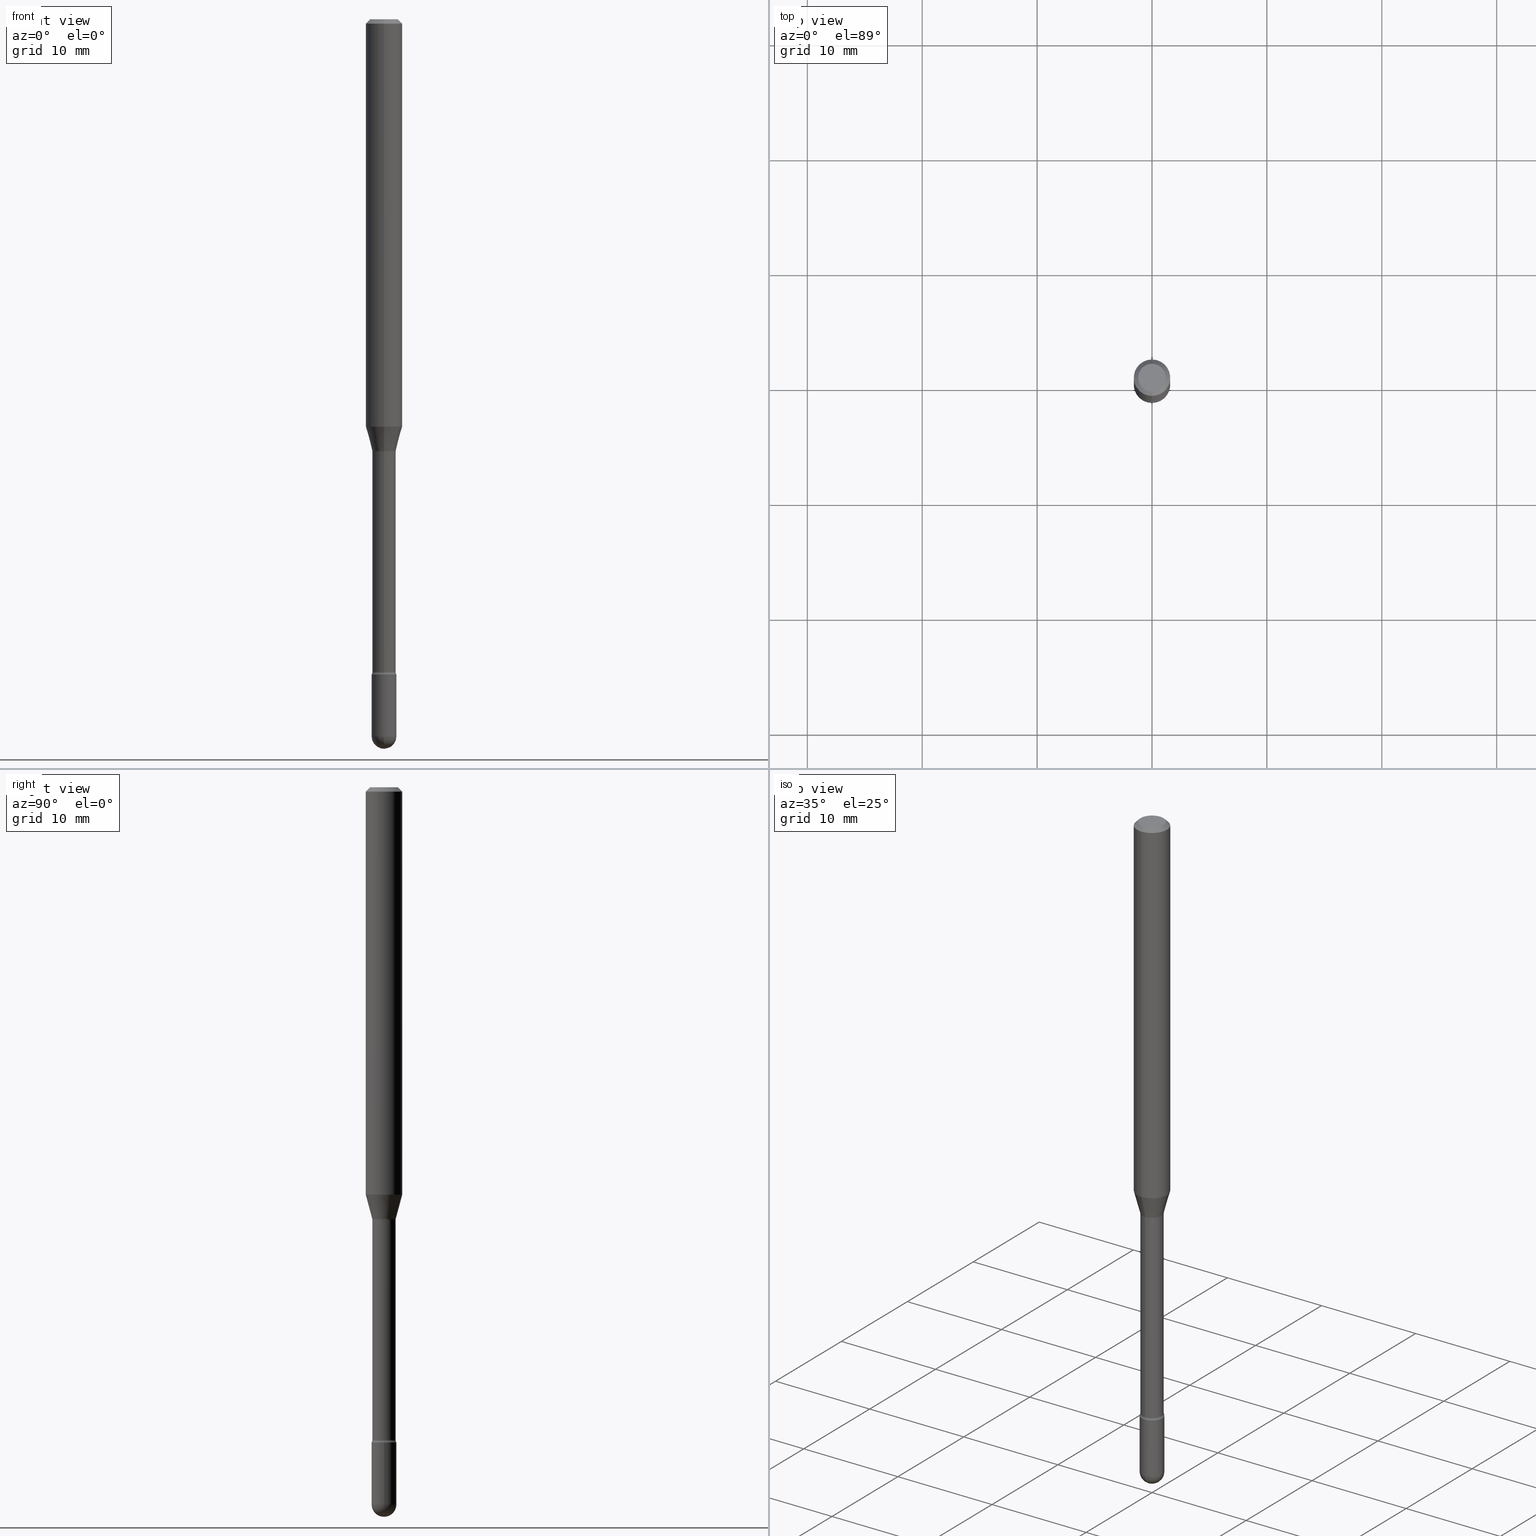
[diagram: canonical four-view strip — front | top / right | iso, engineering-drawing reading convention]
A machine part, canonical four-view strip (front | top / right | iso — engineering-drawing reading convention). The complete STEP part file that produces these views, byte-faithful:
ISO-10303-21;
HEADER;
FILE_DESCRIPTION (( 'STEP AP203' ),
    '1' );
FILE_NAME ('03743.STEP',
    '2024-04-09T20:19:02',
    ( '' ),
    ( '' ),
    'SwSTEP 2.0',
    'SolidWorks 2023',
    '' );
FILE_SCHEMA (( 'CONFIG_CONTROL_DESIGN' ));
ENDSEC;

DATA;
#1 = COORDINATED_UNIVERSAL_TIME_OFFSET ( 5, 0, .BEHIND. ) ;
#2 = ORIENTED_EDGE ( 'NONE', *, *, #489, .F. ) ;
#3 = LINE ( 'NONE', #134, #146 ) ;
#4 = APPROVAL_DATE_TIME ( #224, #300 ) ;
#5 = EDGE_LOOP ( 'NONE', ( #57, #23, #544, #275 ) ) ;
#6 = APPROVAL_DATE_TIME ( #393, #471 ) ;
#7 = CIRCLE ( 'NONE', #196, 0.06250000000000000000 ) ;
#8 = LOCAL_TIME ( 16, 19, 2.000000000000000000, #1 ) ;
#9 = ADVANCED_BREP_SHAPE_REPRESENTATION ( '03743', ( #357, #176, #296 ), #543 ) ;
#10 = ORIENTED_EDGE ( 'NONE', *, *, #458, .T. ) ;
#11 = CARTESIAN_POINT ( 'NONE',  ( 3.624031119525064905E-29, -5.174419056813353329E-15, -1.481974787463811172 ) ) ;
#12 = ORIENTED_EDGE ( 'NONE', *, *, #107, .F. ) ;
#13 = CARTESIAN_POINT ( 'NONE',  ( 5.469478734471066038E-29, -7.809363126603451872E-15, -2.236633549139569688 ) ) ;
#14 = EDGE_CURVE ( 'NONE', #259, #386, #277, .T. ) ;
#15 = VERTEX_POINT ( 'NONE', #63 ) ;
#16 = PRODUCT_DEFINITION_SHAPE ( 'NONE', 'NONE',  #545 ) ;
#17 = TOROIDAL_SURFACE ( 'NONE', #353, 0.05494999999999999885, 0.01500000000000001506 ) ;
#18 = EDGE_LOOP ( 'NONE', ( #265, #413, #350, #12 ) ) ;
#19 = ADVANCED_FACE ( 'NONE', ( #331 ), #460, .T. ) ;
#20 = CIRCLE ( 'NONE', #564, 0.01500000000000001159 ) ;
#21 = CARTESIAN_POINT ( 'NONE',  ( 3.668110095577703732E-31, -5.237355352382881044E-17, -0.01500000000000008271 ) ) ;
#22 = DIRECTION ( 'NONE',  ( -2.445406730385122357E-29, 3.491570234921901204E-15, 1.000000000000000000 ) ) ;
#23 = ORIENTED_EDGE ( 'NONE', *, *, #401, .F. ) ;
#24 = EDGE_LOOP ( 'NONE', ( #440, #370, #565, #529 ) ) ;
#25 = AXIS2_PLACEMENT_3D ( 'NONE', #366, #546, #498 ) ;
#26 = AXIS2_PLACEMENT_3D ( 'NONE', #297, #29, #474 ) ;
#27 = PRODUCT_RELATED_PRODUCT_CATEGORY ( 'detail', '', ( #493 ) ) ;
#28 = CC_DESIGN_APPROVAL ( #203, ( #545 ) ) ;
#29 = DIRECTION ( 'NONE',  ( -2.445406730385122357E-29, 3.491570234921901204E-15, 1.000000000000000000 ) ) ;
#30 = DIRECTION ( 'NONE',  ( 6.982962677686265922E-15, 1.000000000000000000, -6.427877632151215276E-15 ) ) ;
#31 = DIRECTION ( 'NONE',  ( 1.000000000000000000, -6.982962677686265922E-15, 4.876176775795935793E-29 ) ) ;
#32 = DIRECTION ( 'NONE',  ( -6.982962677686265922E-15, -1.000000000000000000, 4.370956789862821150E-15 ) ) ;
#33 = EDGE_CURVE ( 'NONE', #322, #216, #414, .T. ) ;
#34 = DIRECTION ( 'NONE',  ( -6.982962677686266711E-15, -1.000000000000000000, 3.491570234921901599E-15 ) ) ;
#35 = VECTOR ( 'NONE', #424, 39.37007874015748854 ) ;
#36 = CARTESIAN_POINT ( 'NONE',  ( 3.614537352002381406E-29, -5.160863783701689683E-15, -1.478092501787273250 ) ) ;
#37 = AXIS2_PLACEMENT_3D ( 'NONE', #465, #206, #41 ) ;
#38 = CARTESIAN_POINT ( 'NONE',  ( -2.789693589735665748E-16, -0.03995000000000004103, 6.175616297763761985E-16 ) ) ;
#39 = DIRECTION ( 'NONE',  ( -6.982962677686265922E-15, -1.000000000000000000, 4.370956789862821150E-15 ) ) ;
#40 = CARTESIAN_POINT ( 'NONE',  ( -4.364351673553572060E-16, -0.06250000000000484335, -1.395842254289321849 ) ) ;
#41 = DIRECTION ( 'NONE',  ( 1.000000000000000000, -6.982962677686266711E-15, 4.876176775795935793E-29 ) ) ;
#42 = ORIENTED_EDGE ( 'NONE', *, *, #14, .F. ) ;
#43 = CARTESIAN_POINT ( 'NONE',  ( 3.316907271900976096E-16, 0.04749999999999999362, 3.181570853293051375E-17 ) ) ;
#44 = APPLICATION_PROTOCOL_DEFINITION ( 'international standard', 'config_control_design', 1994, #317 ) ;
#45 = AXIS2_PLACEMENT_3D ( 'NONE', #464, #205, #376 ) ;
#46 = ORIENTED_EDGE ( 'NONE', *, *, #408, .T. ) ;
#47 = DIRECTION ( 'NONE',  ( -6.982962677686265133E-15, -1.000000000000000000, 6.838167693777879394E-15 ) ) ;
#48 = DATE_TIME_ROLE ( 'classification_date' ) ;
#49 = EDGE_CURVE ( 'NONE', #68, #313, #246, .T. ) ;
#50 = VERTEX_POINT ( 'NONE', #150 ) ;
#51 = FACE_OUTER_BOUND ( 'NONE', #330, .T. ) ;
#52 = ORIENTED_EDGE ( 'NONE', *, *, #255, .F. ) ;
#53 = CARTESIAN_POINT ( 'NONE',  ( -2.789693589735301393E-16, -0.03995000000000518275, -1.481974787463810728 ) ) ;
#54 = CALENDAR_DATE ( 2024, 9, 4 ) ;
#55 = AXIS2_PLACEMENT_3D ( 'NONE', #417, #374, #213 ) ;
#56 = CIRCLE ( 'NONE', #378, 0.04046111260566399165 ) ;
#57 = ORIENTED_EDGE ( 'NONE', *, *, #254, .F. ) ;
#58 = DIRECTION ( 'NONE',  ( 1.000000000000000000, -6.982962677686273810E-15, 0.000000000000000000 ) ) ;
#59 = DIRECTION ( 'NONE',  ( -6.982962677686266711E-15, -1.000000000000000000, 6.838167693777865983E-15 ) ) ;
#60 = DIRECTION ( 'NONE',  ( -6.982962677686266711E-15, -1.000000000000000000, 3.491570234921901599E-15 ) ) ;
#61 = ORIENTED_EDGE ( 'NONE', *, *, #520, .F. ) ;
#62 = CIRCLE ( 'NONE', #157, 0.04749999999999999362 ) ;
#63 = CARTESIAN_POINT ( 'NONE',  ( 4.440892098500969316E-16, 0.06249999999999993755, -0.01500000000000030129 ) ) ;
#64 = CIRCLE ( 'NONE', #432, 0.06250000000000000000 ) ;
#65 = DIRECTION ( 'NONE',  ( -6.982962677686266711E-15, -1.000000000000000000, 0.000000000000000000 ) ) ;
#66 = CC_DESIGN_PERSON_AND_ORGANIZATION_ASSIGNMENT ( #430, #442, ( #493 ) ) ;
#67 = EDGE_CURVE ( 'NONE', #313, #534, #135, .T. ) ;
#68 = VERTEX_POINT ( 'NONE', #553 ) ;
#69 = DIRECTION ( 'NONE',  ( 1.000000000000000000, -6.982962677686265922E-15, 4.883557194083112340E-29 ) ) ;
#70 = AXIS2_PLACEMENT_3D ( 'NONE', #263, #566, #223 ) ;
#71 = FACE_OUTER_BOUND ( 'NONE', #402, .T. ) ;
#72 = CC_DESIGN_APPROVAL ( #471, ( #304 ) ) ;
#73 = DIRECTION ( 'NONE',  ( -2.445406730385122357E-29, 3.491570234921901204E-15, 1.000000000000000000 ) ) ;
#74 = EDGE_CURVE ( 'NONE', #15, #367, #455, .T. ) ;
#75 = FACE_OUTER_BOUND ( 'NONE', #273, .T. ) ;
#76 = CARTESIAN_POINT ( 'NONE',  ( 2.838618229362148951E-16, 0.03994999999999483686, -1.481974787463811394 ) ) ;
#77 = FACE_OUTER_BOUND ( 'NONE', #326, .T. ) ;
#78 =( NAMED_UNIT ( * ) SI_UNIT ( $, .STERADIAN. ) SOLID_ANGLE_UNIT ( ) );
#79 = CARTESIAN_POINT ( 'NONE',  ( 3.668110095577703732E-31, -5.237355352382881044E-17, -0.01500000000000008271 ) ) ;
#80 = CONICAL_SURFACE ( 'NONE', #548, 0.06250000000000000000, 0.7853981633974483900 ) ;
#81 = CARTESIAN_POINT ( 'NONE',  ( 3.904432333002112329E-16, 0.05494999999999482937, -1.481974787463811394 ) ) ;
#82 = CIRCLE ( 'NONE', #397, 0.04249999999999999611 ) ;
#83 = PLANE ( 'NONE',  #295 ) ;
#84 = DIRECTION ( 'NONE',  ( -4.851104656540964275E-15, -0.7071067811865500152, -0.7071067811865450192 ) ) ;
#85 = DIRECTION ( 'NONE',  ( -6.982962677686266711E-15, -1.000000000000000000, 6.838167693777865983E-15 ) ) ;
#86 = DATE_AND_TIME ( #435, #101 ) ;
#87 = ORIENTED_EDGE ( 'NONE', *, *, #522, .T. ) ;
#88 = CARTESIAN_POINT ( 'NONE',  ( -4.364351673553916201E-16, -0.06250000000000000000, 6.962965385738649378E-16 ) ) ;
#89 = SECURITY_CLASSIFICATION_LEVEL ( 'unclassified' ) ;
#90 = CIRCLE ( 'NONE', #234, 0.04249999999999999611 ) ;
#91 = ADVANCED_FACE ( 'NONE', ( #200 ), #379, .T. ) ;
#92 = VERTEX_POINT ( 'NONE', #516 ) ;
#93 = DIRECTION ( 'NONE',  ( 1.000000000000000000, -6.982962677686273810E-15, 0.000000000000000000 ) ) ;
#94 = EDGE_CURVE ( 'NONE', #482, #259, #494, .T. ) ;
#95 = EDGE_LOOP ( 'NONE', ( #10, #171, #445, #52 ) ) ;
#96 = PLANE ( 'NONE',  #108 ) ;
#97 = ADVANCED_FACE ( 'NONE', ( #291 ), #286, .T. ) ;
#98 = VERTEX_POINT ( 'NONE', #372 ) ;
#99 = CARTESIAN_POINT ( 'NONE',  ( 2.967759138017263083E-16, 0.04249999999999140576, -2.457500000000000462 ) ) ;
#100 = CIRCLE ( 'NONE', #470, 0.04250000000000000999 ) ;
#101 = LOCAL_TIME ( 16, 19, 2.000000000000000000, #268 ) ;
#102 = ORIENTED_EDGE ( 'NONE', *, *, #180, .T. ) ;
#103 = CARTESIAN_POINT ( 'NONE',  ( 6.009739591199973545E-29, -8.580315390207031617E-15, -2.457500000000000018 ) ) ;
#104 = EDGE_LOOP ( 'NONE', ( #285, #87, #451, #194 ) ) ;
#105 = ADVANCED_FACE ( 'NONE', ( #208 ), #80, .T. ) ;
#106 = ORIENTED_EDGE ( 'NONE', *, *, #145, .F. ) ;
#107 = EDGE_CURVE ( 'NONE', #68, #235, #507, .T. ) ;
#108 = AXIS2_PLACEMENT_3D ( 'NONE', #43, #446, #217 ) ;
#109 = AXIS2_PLACEMENT_3D ( 'NONE', #415, #262, #30 ) ;
#110 = ORIENTED_EDGE ( 'NONE', *, *, #123, .T. ) ;
#111 = ORIENTED_EDGE ( 'NONE', *, *, #159, .F. ) ;
#112 = DIRECTION ( 'NONE',  ( 2.445406730385122357E-29, -3.491570234921901204E-15, -1.000000000000000000 ) ) ;
#113 = DIRECTION ( 'NONE',  ( -2.445406730385122357E-29, 3.491570234921901204E-15, 1.000000000000000000 ) ) ;
#114 = CIRCLE ( 'NONE', #181, 0.01500000000000000291 ) ;
#115 = DIRECTION ( 'NONE',  ( -6.982962677686266711E-15, -1.000000000000000000, 6.427877632151208176E-15 ) ) ;
#116 = LOCAL_TIME ( 16, 19, 2.000000000000000000, #531 ) ;
#117 = CARTESIAN_POINT ( 'NONE',  ( 3.614537352002381406E-29, -5.160863783701689683E-15, -1.478092501787273250 ) ) ;
#118 = ADVANCED_FACE ( 'NONE', ( #77 ), #260, .F. ) ;
#119 = DIRECTION ( 'NONE',  ( -6.982962677686265922E-15, -1.000000000000000000, 3.483106191921935554E-15 ) ) ;
#120 = DIRECTION ( 'NONE',  ( -2.445406730385122357E-29, 3.491570234921901204E-15, 1.000000000000000000 ) ) ;
#121 =( LENGTH_UNIT ( ) NAMED_UNIT ( * ) SI_UNIT ( $, .METRE. ) );
#122 = ADVANCED_FACE ( 'NONE', ( #71 ), #563, .F. ) ;
#123 = EDGE_CURVE ( 'NONE', #50, #399, #406, .T. ) ;
#124 = CARTESIAN_POINT ( 'NONE',  ( -2.789693589735121927E-16, -0.03995000000000789586, -2.236633549139569688 ) ) ;
#125 = AXIS2_PLACEMENT_3D ( 'NONE', #328, #363, #164 ) ;
#126 = CARTESIAN_POINT ( 'NONE',  ( -1.169113584055446105E-44, 1.669184350826100908E-30, 4.780733988912460139E-16 ) ) ;
#127 = APPROVAL_PERSON_ORGANIZATION ( #242, #471, #525 ) ;
#128 = CARTESIAN_POINT ( 'NONE',  ( 6.009739591199973545E-29, -8.580315390207031617E-15, -2.457500000000000018 ) ) ;
#129 = EDGE_CURVE ( 'NONE', #412, #309, #62, .T. ) ;
#130 = ORIENTED_EDGE ( 'NONE', *, *, #258, .F. ) ;
#131 = FACE_OUTER_BOUND ( 'NONE', #148, .T. ) ;
#132 = APPROVAL_STATUS ( 'not_yet_approved' ) ;
#133 = VERTEX_POINT ( 'NONE', #506 ) ;
#134 = CARTESIAN_POINT ( 'NONE',  ( 2.838618229361602665E-16, 0.03995000000000004103, 3.385851680061159280E-16 ) ) ;
#135 = CIRCLE ( 'NONE', #125, 0.03995000000000000634 ) ;
#136 = APPROVAL_PERSON_ORGANIZATION ( #349, #203, #346 ) ;
#137 = EDGE_LOOP ( 'NONE', ( #270, #229, #395, #182, #457 ) ) ;
#138 = CYLINDRICAL_SURFACE ( 'NONE', #279, 0.06250000000000000000 ) ;
#139 = APPROVAL_STATUS ( 'not_yet_approved' ) ;
#140 = ORIENTED_EDGE ( 'NONE', *, *, #489, .T. ) ;
#141 = DIRECTION ( 'NONE',  ( -2.445468806185136597E-29, 3.491481338843145583E-15, 1.000000000000000000 ) ) ;
#142 = PERSON_AND_ORGANIZATION_ROLE ( 'creator' ) ;
#143 = ORIENTED_EDGE ( 'NONE', *, *, #504, .T. ) ;
#144 = DIRECTION ( 'NONE',  ( -2.445406730385122357E-29, 3.491570234921901204E-15, 1.000000000000000000 ) ) ;
#145 = EDGE_CURVE ( 'NONE', #133, #541, #380, .T. ) ;
#146 = VECTOR ( 'NONE', #438, 39.37007874015748143 ) ;
#147 = CIRCLE ( 'NONE', #316, 0.04249999999999999611 ) ;
#148 = EDGE_LOOP ( 'NONE', ( #526, #501 ) ) ;
#149 = EDGE_LOOP ( 'NONE', ( #130, #550, #347, #198 ) ) ;
#150 = CARTESIAN_POINT ( 'NONE',  ( 3.019806626980974758E-16, 0.04249999999999216904, -2.245000000000000551 ) ) ;
#151 = AXIS2_PLACEMENT_3D ( 'NONE', #250, #469, #39 ) ;
#152 = ORIENTED_EDGE ( 'NONE', *, *, #251, .F. ) ;
#153 = ORIENTED_EDGE ( 'NONE', *, *, #375, .T. ) ;
#154 = CARTESIAN_POINT ( 'NONE',  ( 4.440892098500969316E-16, 0.06249999999999515665, -1.395842254289322293 ) ) ;
#155 = CARTESIAN_POINT ( 'NONE',  ( 2.874934964272957737E-16, 0.04046111260565882911, -1.478092501787273472 ) ) ;
#156 = DIRECTION ( 'NONE',  ( -2.445406730385122357E-29, 3.491570234921901204E-15, 1.000000000000000000 ) ) ;
#157 = AXIS2_PLACEMENT_3D ( 'NONE', #418, #120, #34 ) ;
#158 = DIRECTION ( 'NONE',  ( -2.445406730385122357E-29, 3.491570234921900810E-15, 1.000000000000000000 ) ) ;
#159 = EDGE_CURVE ( 'NONE', #497, #98, #165, .T. ) ;
#160 = FACE_OUTER_BOUND ( 'NONE', #137, .T. ) ;
#161 = DIRECTION ( 'NONE',  ( -2.445406730385122357E-29, 3.491570234921901204E-15, 1.000000000000000000 ) ) ;
#162 = SPHERICAL_SURFACE ( 'NONE', #109, 0.04249999999999994754 ) ;
#163 = ADVANCED_FACE ( 'NONE', ( #75 ), #83, .T. ) ;
#164 = DIRECTION ( 'NONE',  ( -6.982962677686265133E-15, -1.000000000000000000, 6.838167693777879394E-15 ) ) ;
#165 = LINE ( 'NONE', #256, #444 ) ;
#166 = CC_DESIGN_PERSON_AND_ORGANIZATION_ASSIGNMENT ( #521, #536, ( #197 ) ) ;
#167 = DIRECTION ( 'NONE',  ( -2.445468806185136597E-29, 3.491481338843145583E-15, 1.000000000000000000 ) ) ;
#168 = DIRECTION ( 'NONE',  ( -2.445406730385122357E-29, 3.491570234921900810E-15, 1.000000000000000000 ) ) ;
#169 = AXIS2_PLACEMENT_3D ( 'NONE', #276, #479, #434 ) ;
#170 = AXIS2_PLACEMENT_3D ( 'NONE', #117, #427, #461 ) ;
#171 = ORIENTED_EDGE ( 'NONE', *, *, #258, .T. ) ;
#172 = LINE ( 'NONE', #348, #385 ) ;
#173 = APPROVAL_STATUS ( 'not_yet_approved' ) ;
#174 = ORIENTED_EDGE ( 'NONE', *, *, #123, .F. ) ;
#175 = DIRECTION ( 'NONE',  ( -2.445468806185136597E-29, 3.491481338843145583E-15, 1.000000000000000000 ) ) ;
#176 = MANIFOLD_SOLID_BREP ( 'Body-Move/Copy2[2]', #231 ) ;
#177 = ORIENTED_EDGE ( 'NONE', *, *, #94, .F. ) ;
#178 = DIRECTION ( 'NONE',  ( -2.445406730385122357E-29, 3.491570234921900810E-15, 1.000000000000000000 ) ) ;
#179 = PERSON_AND_ORGANIZATION_ROLE ( 'creator' ) ;
#180 = EDGE_CURVE ( 'NONE', #133, #68, #394, .T. ) ;
#181 = AXIS2_PLACEMENT_3D ( 'NONE', #355, #487, #519 ) ;
#182 = ORIENTED_EDGE ( 'NONE', *, *, #159, .T. ) ;
#183 = CYLINDRICAL_SURFACE ( 'NONE', #169, 0.03995000000000004103 ) ;
#184 = CALENDAR_DATE ( 2024, 9, 4 ) ;
#185 = ORIENTED_EDGE ( 'NONE', *, *, #193, .T. ) ;
#186 = CARTESIAN_POINT ( 'NONE',  ( 5.489938109714599941E-29, -7.838575177399668867E-15, -2.245000000000000107 ) ) ;
#187 = CARTESIAN_POINT ( 'NONE',  ( -3.837137991388241005E-16, -0.05495000000000517526, -1.481974787463810728 ) ) ;
#188 = CIRCLE ( 'NONE', #247, 0.03995000000000008267 ) ;
#189 = APPROVAL_PERSON_ORGANIZATION ( #308, #300, #492 ) ;
#190 = DIMENSIONAL_EXPONENTS ( 1.000000000000000000, 0.000000000000000000, 0.000000000000000000, 0.000000000000000000, 0.000000000000000000, 0.000000000000000000, 0.000000000000000000 ) ;
#191 = ORIENTED_EDGE ( 'NONE', *, *, #423, .F. ) ;
#192 = ORIENTED_EDGE ( 'NONE', *, *, #375, .F. ) ;
#193 = EDGE_CURVE ( 'NONE', #216, #313, #305, .T. ) ;
#194 = ORIENTED_EDGE ( 'NONE', *, *, #410, .F. ) ;
#195 = CLOSED_SHELL ( 'NONE', ( #371, #91, #163, #466, #533 ) ) ;
#196 = AXIS2_PLACEMENT_3D ( 'NONE', #336, #511, #119 ) ;
#197 = SECURITY_CLASSIFICATION ( '', '', #89 ) ;
#198 = ORIENTED_EDGE ( 'NONE', *, *, #74, .F. ) ;
#199 = APPLICATION_CONTEXT ( 'configuration controlled 3d designs of mechanical parts and assemblies' ) ;
#200 = FACE_OUTER_BOUND ( 'NONE', #244, .T. ) ;
#201 = CARTESIAN_POINT ( 'NONE',  ( 5.489938109714599941E-29, -7.838575177399668867E-15, -2.245000000000000107 ) ) ;
#202 = CARTESIAN_POINT ( 'NONE',  ( 5.490077469885631570E-29, -7.838375605702861835E-15, -2.245000000000000107 ) ) ;
#203 = APPROVAL ( #132, 'UNSPECIFIED' ) ;
#204 = EDGE_CURVE ( 'NONE', #367, #15, #7, .T. ) ;
#205 = DIRECTION ( 'NONE',  ( -2.445406730385122357E-29, 3.491570234921901204E-15, 1.000000000000000000 ) ) ;
#206 = DIRECTION ( 'NONE',  ( -2.445468806185136597E-29, 3.491481338843145583E-15, 1.000000000000000000 ) ) ;
#207 = AXIS2_PLACEMENT_3D ( 'NONE', #21, #554, #333 ) ;
#208 = FACE_OUTER_BOUND ( 'NONE', #104, .T. ) ;
#209 = ADVANCED_FACE ( 'NONE', ( #557 ), #377, .F. ) ;
#210 = DIRECTION ( 'NONE',  ( -6.982962677686266711E-15, -1.000000000000000000, 0.000000000000000000 ) ) ;
#211 = CARTESIAN_POINT ( 'NONE',  ( 5.469617575287968605E-29, -7.809164298651321670E-15, -2.236633549139569688 ) ) ;
#212 = ADVANCED_FACE ( 'NONE', ( #299 ), #329, .F. ) ;
#213 = DIRECTION ( 'NONE',  ( -6.982962677686265922E-15, -1.000000000000000000, 3.483106191921935554E-15 ) ) ;
#214 = DIRECTION ( 'NONE',  ( 6.982962677686265922E-15, 1.000000000000000000, -3.483106191921935554E-15 ) ) ;
#215 = AXIS2_PLACEMENT_3D ( 'NONE', #187, #289, #65 ) ;
#216 = VERTEX_POINT ( 'NONE', #124 ) ;
#217 = DIRECTION ( 'NONE',  ( 6.982962677686265922E-15, 1.000000000000000000, -3.491570234921900810E-15 ) ) ;
#218 = CIRCLE ( 'NONE', #335, 0.04749999999999999362 ) ;
#219 = DIRECTION ( 'NONE',  ( 1.000000000000000000, 0.000000000000000000, 0.000000000000000000 ) ) ;
#220 = CIRCLE ( 'NONE', #472, 0.01500000000000000291 ) ;
#221 = CC_DESIGN_PERSON_AND_ORGANIZATION_ASSIGNMENT ( #480, #311, ( #304 ) ) ;
#222 = EDGE_LOOP ( 'NONE', ( #245, #538, #547, #354 ) ) ;
#223 = DIRECTION ( 'NONE',  ( -7.105427357601001070E-15, -1.000000000000000000, 0.000000000000000000 ) ) ;
#224 = DATE_AND_TIME ( #477, #510 ) ;
#225 = EDGE_LOOP ( 'NONE', ( #365, #327, #2, #111, #433 ) ) ;
#226 = CARTESIAN_POINT ( 'NONE',  ( -0.04249999999999999611, -7.907364835256903484E-15, -2.245000000000000107 ) ) ;
#227 = DATE_AND_TIME ( #54, #116 ) ;
#228 = EDGE_CURVE ( 'NONE', #386, #290, #513, .T. ) ;
#229 = ORIENTED_EDGE ( 'NONE', *, *, #423, .T. ) ;
#230 = FACE_OUTER_BOUND ( 'NONE', #225, .T. ) ;
#231 = CLOSED_SHELL ( 'NONE', ( #122, #448, #212, #105, #239, #19, #532, #500, #97, #288, #118, #209, #383, #283 ) ) ;
#232 = CALENDAR_DATE ( 2024, 9, 4 ) ;
#233 = VECTOR ( 'NONE', #530, 39.37007874015748143 ) ;
#234 = AXIS2_PLACEMENT_3D ( 'NONE', #186, #539, #450 ) ;
#235 = VERTEX_POINT ( 'NONE', #40 ) ;
#236 = CARTESIAN_POINT ( 'NONE',  ( -0.04250000000000000999, -7.907364835256903484E-15, -2.457500000000000018 ) ) ;
#237 = EDGE_LOOP ( 'NONE', ( #503, #428, #152, #523 ) ) ;
#238 = FACE_OUTER_BOUND ( 'NONE', #24, .T. ) ;
#239 = ADVANCED_FACE ( 'NONE', ( #307 ), #138, .T. ) ;
#240 = CARTESIAN_POINT ( 'NONE',  ( 3.614537352002381406E-29, -5.160863783701689683E-15, -1.478092501787273250 ) ) ;
#241 = CIRCLE ( 'NONE', #343, 0.03995000000000000634 ) ;
#242 = PERSON_AND_ORGANIZATION ( #339, #325 ) ;
#243 = ORIENTED_EDGE ( 'NONE', *, *, #499, .F. ) ;
#244 = EDGE_LOOP ( 'NONE', ( #177, #46, #191, #42 ) ) ;
#245 = ORIENTED_EDGE ( 'NONE', *, *, #522, .F. ) ;
#246 = CIRCLE ( 'NONE', #215, 0.01500000000000001159 ) ;
#247 = AXIS2_PLACEMENT_3D ( 'NONE', #13, #387, #85 ) ;
#248 = AXIS2_PLACEMENT_3D ( 'NONE', #126, #113, #342 ) ;
#249 = DIRECTION ( 'NONE',  ( -2.445468806185136877E-29, 3.491481338843145188E-15, 1.000000000000000000 ) ) ;
#250 = CARTESIAN_POINT ( 'NONE',  ( 3.413402043195049216E-29, -4.873681267722884872E-15, -1.395842254289322071 ) ) ;
#251 = EDGE_CURVE ( 'NONE', #497, #259, #100, .T. ) ;
#252 = DIRECTION ( 'NONE',  ( -2.438088387897960049E-29, 3.491481338843145188E-15, 1.000000000000000000 ) ) ;
#253 = DIRECTION ( 'NONE',  ( -6.982962677686265922E-15, -1.000000000000000000, 6.751786635945948968E-15 ) ) ;
#254 = EDGE_CURVE ( 'NONE', #322, #50, #114, .T. ) ;
#255 = EDGE_CURVE ( 'NONE', #235, #367, #429, .T. ) ;
#256 = CARTESIAN_POINT ( 'NONE',  ( 0.04250000000000000999, -2.967759138016664042E-16, 2.072375129713273202E-30 ) ) ;
#257 = AXIS2_PLACEMENT_3D ( 'NONE', #556, #340, #303 ) ;
#258 = EDGE_CURVE ( 'NONE', #541, #15, #441, .T. ) ;
#259 = VERTEX_POINT ( 'NONE', #99 ) ;
#260 = PLANE ( 'NONE',  #481 ) ;
#261 = DIRECTION ( 'NONE',  ( 7.105427357601001859E-15, 1.000000000000000000, 0.000000000000000000 ) ) ;
#262 = DIRECTION ( 'NONE',  ( -1.000000000000000000, 6.982962677686265922E-15, -4.883557194083112340E-29 ) ) ;
#263 = CARTESIAN_POINT ( 'NONE',  ( 6.009739591199973545E-29, -8.580315390207031617E-15, -2.457500000000000018 ) ) ;
#264 = AXIS2_PLACEMENT_3D ( 'NONE', #240, #454, #409 ) ;
#265 = ORIENTED_EDGE ( 'NONE', *, *, #499, .T. ) ;
#266 = CYLINDRICAL_SURFACE ( 'NONE', #431, 0.04250000000000000999 ) ;
#267 = AXIS2_PLACEMENT_3D ( 'NONE', #103, #323, #362 ) ;
#268 = COORDINATED_UNIVERSAL_TIME_OFFSET ( 5, 0, .BEHIND. ) ;
#269 = CC_DESIGN_APPROVAL ( #300, ( #197 ) ) ;
#270 = ORIENTED_EDGE ( 'NONE', *, *, #228, .F. ) ;
#271 = DIRECTION ( 'NONE',  ( -2.445406730385122357E-29, 3.491570234921901204E-15, 1.000000000000000000 ) ) ;
#272 = CARTESIAN_POINT ( 'NONE',  ( 0.000000000000000000, 0.000000000000000000, 0.000000000000000000 ) ) ;
#273 = EDGE_LOOP ( 'NONE', ( #140, #389 ) ) ;
#274 = CARTESIAN_POINT ( 'NONE',  ( 3.840629472727447874E-16, 0.04749999999999999362, -2.485923956665947867E-16 ) ) ;
#275 = ORIENTED_EDGE ( 'NONE', *, *, #443, .T. ) ;
#276 = CARTESIAN_POINT ( 'NONE',  ( -1.169113584055446105E-44, 1.669184350826100908E-30, 4.780733988912460139E-16 ) ) ;
#277 = CIRCLE ( 'NONE', #25, 0.04250000000000000999 ) ;
#278 = DIRECTION ( 'NONE',  ( 0.000000000000000000, 0.000000000000000000, 1.000000000000000000 ) ) ;
#279 = AXIS2_PLACEMENT_3D ( 'NONE', #321, #345, #535 ) ;
#280 = CIRCLE ( 'NONE', #151, 0.06250000000000000000 ) ;
#281 = ORIENTED_EDGE ( 'NONE', *, *, #416, .F. ) ;
#282 = CARTESIAN_POINT ( 'NONE',  ( 2.023101464726574981E-45, -2.889448296817819306E-31, -8.274280950780451302E-17 ) ) ;
#283 = ADVANCED_FACE ( 'NONE', ( #51 ), #17, .F. ) ;
#284 = ORIENTED_EDGE ( 'NONE', *, *, #254, .T. ) ;
#285 = ORIENTED_EDGE ( 'NONE', *, *, #129, .F. ) ;
#286 = CONICAL_SURFACE ( 'NONE', #207, 0.06250000000000000000, 0.7853981633974483900 ) ;
#287 = VECTOR ( 'NONE', #341, 39.37007874015748143 ) ;
#288 = ADVANCED_FACE ( 'NONE', ( #131 ), #96, .F. ) ;
#289 = DIRECTION ( 'NONE',  ( -1.000000000000000000, 6.982962677686265922E-15, -4.883557194083112340E-29 ) ) ;
#290 = VERTEX_POINT ( 'NONE', #226 ) ;
#291 = FACE_OUTER_BOUND ( 'NONE', #222, .T. ) ;
#292 = CARTESIAN_POINT ( 'NONE',  ( 2.967759138017211808E-16, 0.04249999999999216210, -2.245000000000000551 ) ) ;
#293 = CARTESIAN_POINT ( 'NONE',  ( -4.287811248607203282E-16, -0.06250000000000005551, -0.01499999999999986587 ) ) ;
#294 = AXIS2_PLACEMENT_3D ( 'NONE', #505, #22, #59 ) ;
#295 = AXIS2_PLACEMENT_3D ( 'NONE', #517, #252, #31 ) ;
#296 = AXIS2_PLACEMENT_3D ( 'NONE', #272, #278, #219 ) ;
#297 = CARTESIAN_POINT ( 'NONE',  ( 3.624123114295597738E-29, -5.174287315065933391E-15, -1.481974787463811172 ) ) ;
#298 = CARTESIAN_POINT ( 'NONE',  ( 0.04250000000000000999, -8.506121411756614166E-15, -2.457500000000000018 ) ) ;
#299 = FACE_OUTER_BOUND ( 'NONE', #478, .T. ) ;
#300 = APPROVAL ( #139, 'UNSPECIFIED' ) ;
#301 = DIRECTION ( 'NONE',  ( -6.982962677686265922E-15, -1.000000000000000000, 3.491570234921901204E-15 ) ) ;
#302 = DIRECTION ( 'NONE',  ( -2.445468806185136597E-29, 3.491481338843145583E-15, 1.000000000000000000 ) ) ;
#303 = DIRECTION ( 'NONE',  ( 6.982962677686265922E-15, 1.000000000000000000, -6.427877632151215276E-15 ) ) ;
#304 = PRODUCT_DEFINITION_FORMATION_WITH_SPECIFIED_SOURCE ( 'ANY', '', #493, .NOT_KNOWN. ) ;
#305 = LINE ( 'NONE', #38, #502 ) ;
#306 = LINE ( 'NONE', #293, #344 ) ;
#307 = FACE_OUTER_BOUND ( 'NONE', #95, .T. ) ;
#308 = PERSON_AND_ORGANIZATION ( #339, #325 ) ;
#309 = VERTEX_POINT ( 'NONE', #274 ) ;
#310 = CARTESIAN_POINT ( 'NONE',  ( -4.364351673553912750E-16, -0.06250000000000005551, -0.01499999999999986587 ) ) ;
#311 = PERSON_AND_ORGANIZATION_ROLE ( 'design_supplier' ) ;
#312 = EDGE_CURVE ( 'NONE', #92, #497, #422, .T. ) ;
#313 = VERTEX_POINT ( 'NONE', #53 ) ;
#314 = CARTESIAN_POINT ( 'NONE',  ( 6.009739591199973545E-29, -8.580315390207031617E-15, -2.457500000000000018 ) ) ;
#315 = APPLICATION_PROTOCOL_DEFINITION ( 'international standard', 'config_control_design', 1994, #199 ) ;
#316 = AXIS2_PLACEMENT_3D ( 'NONE', #202, #167, #337 ) ;
#317 = APPLICATION_CONTEXT ( 'configuration controlled 3d designs of mechanical parts and assemblies' ) ;
#318 = ORIENTED_EDGE ( 'NONE', *, *, #49, .F. ) ;
#319 = DIRECTION ( 'NONE',  ( -6.982962677686265922E-15, -1.000000000000000000, 3.491570234921901204E-15 ) ) ;
#320 = ORIENTED_EDGE ( 'NONE', *, *, #180, .F. ) ;
#321 = CARTESIAN_POINT ( 'NONE',  ( -1.169113584055446105E-44, 1.669184350826100908E-30, 4.780733988912460139E-16 ) ) ;
#322 = VERTEX_POINT ( 'NONE', #359 ) ;
#323 = DIRECTION ( 'NONE',  ( -2.445468806185136597E-29, 3.491481338843145583E-15, 1.000000000000000000 ) ) ;
#324 = CIRCLE ( 'NONE', #70, 0.04249999999999994754 ) ;
#325 = ORGANIZATION ( 'UNSPECIFIED', 'UNSPECIFIED', '' ) ;
#326 = EDGE_LOOP ( 'NONE', ( #405, #174 ) ) ;
#327 = ORIENTED_EDGE ( 'NONE', *, *, #228, .T. ) ;
#328 = CARTESIAN_POINT ( 'NONE',  ( 3.624031119525064905E-29, -5.174419056813353329E-15, -1.481974787463811172 ) ) ;
#329 = TOROIDAL_SURFACE ( 'NONE', #368, 0.05495000000000008905, 0.01500000000000000291 ) ;
#330 = EDGE_LOOP ( 'NONE', ( #486, #243, #358, #361 ) ) ;
#331 = FACE_OUTER_BOUND ( 'NONE', #18, .T. ) ;
#332 = DIRECTION ( 'NONE',  ( 1.000000000000000000, -6.982962677686276177E-15, 0.000000000000000000 ) ) ;
#333 = DIRECTION ( 'NONE',  ( 6.982962677686265922E-15, 1.000000000000000000, -3.483106191921935554E-15 ) ) ;
#334 = CYLINDRICAL_SURFACE ( 'NONE', #248, 0.06250000000000000000 ) ;
#335 = AXIS2_PLACEMENT_3D ( 'NONE', #282, #144, #60 ) ;
#336 = CARTESIAN_POINT ( 'NONE',  ( 3.668110095577703732E-31, -5.237355352382881044E-17, -0.01500000000000008271 ) ) ;
#337 = DIRECTION ( 'NONE',  ( 1.000000000000000000, -6.982962677686276177E-15, 0.000000000000000000 ) ) ;
#338 = DIRECTION ( 'NONE',  ( 1.000000000000000000, -7.105427357601001070E-15, 4.926316597205065174E-29 ) ) ;
#339 = PERSON ( 'UNSPECIFIED', 'UNSPECIFIED', 'UNSPECIFIED', ('UNSPECIFIED'), ('UNSPECIFIED'), ('UNSPECIFIED') ) ;
#340 = DIRECTION ( 'NONE',  ( -1.000000000000000000, 6.982962677686265922E-15, -4.883557194083112340E-29 ) ) ;
#341 = DIRECTION ( 'NONE',  ( -2.445468806185136877E-29, 3.491481338843145188E-15, 1.000000000000000000 ) ) ;
#342 = DIRECTION ( 'NONE',  ( -6.982962677686265922E-15, -1.000000000000000000, 3.491570234921901599E-15 ) ) ;
#343 = AXIS2_PLACEMENT_3D ( 'NONE', #11, #271, #47 ) ;
#344 = VECTOR ( 'NONE', #84, 39.37007874015748143 ) ;
#345 = DIRECTION ( 'NONE',  ( -2.445406730385122357E-29, 3.491570234921901204E-15, 1.000000000000000000 ) ) ;
#346 = APPROVAL_ROLE ( '' ) ;
#347 = ORIENTED_EDGE ( 'NONE', *, *, #255, .T. ) ;
#348 = CARTESIAN_POINT ( 'NONE',  ( 4.364351673553919652E-16, 0.06249999999999995143, -0.01500000000000030129 ) ) ;
#349 = PERSON_AND_ORGANIZATION ( #339, #325 ) ;
#350 = ORIENTED_EDGE ( 'NONE', *, *, #458, .F. ) ;
#351 = DIRECTION ( 'NONE',  ( -2.445406730385122357E-29, 3.491570234921901204E-15, 1.000000000000000000 ) ) ;
#352 = SHAPE_DEFINITION_REPRESENTATION ( #16, #9 ) ;
#353 = AXIS2_PLACEMENT_3D ( 'NONE', #476, #351, #319 ) ;
#354 = ORIENTED_EDGE ( 'NONE', *, *, #74, .T. ) ;
#355 = CARTESIAN_POINT ( 'NONE',  ( 3.904432333002303135E-16, 0.05494999999999227586, -2.236633549139570132 ) ) ;
#356 = PERSON_AND_ORGANIZATION ( #339, #325 ) ;
#357 = MANIFOLD_SOLID_BREP ( 'Body-Move/Copy2[1]', #195 ) ;
#358 = ORIENTED_EDGE ( 'NONE', *, *, #49, .T. ) ;
#359 = CARTESIAN_POINT ( 'NONE',  ( 2.929212428171563580E-16, 0.03994999999999226947, -2.236633549139570132 ) ) ;
#360 = PERSON_AND_ORGANIZATION ( #339, #325 ) ;
#361 = ORIENTED_EDGE ( 'NONE', *, *, #67, .T. ) ;
#362 = DIRECTION ( 'NONE',  ( 1.000000000000000000, -6.982962677686273810E-15, 0.000000000000000000 ) ) ;
#363 = DIRECTION ( 'NONE',  ( -2.445406730385122357E-29, 3.491570234921901204E-15, 1.000000000000000000 ) ) ;
#364 = AXIS2_PLACEMENT_3D ( 'NONE', #128, #141, #93 ) ;
#365 = ORIENTED_EDGE ( 'NONE', *, *, #14, .T. ) ;
#366 = CARTESIAN_POINT ( 'NONE',  ( 6.009739591199973545E-29, -8.580315390207031617E-15, -2.457500000000000018 ) ) ;
#367 = VERTEX_POINT ( 'NONE', #310 ) ;
#368 = AXIS2_PLACEMENT_3D ( 'NONE', #382, #559, #301 ) ;
#369 = CONICAL_SURFACE ( 'NONE', #170, 0.04046111260566399165, 0.2617993877991499074 ) ;
#370 = ORIENTED_EDGE ( 'NONE', *, *, #416, .T. ) ;
#371 = ADVANCED_FACE ( 'NONE', ( #230 ), #266, .T. ) ;
#372 = CARTESIAN_POINT ( 'NONE',  ( 0.04249999999999999611, -8.135151519504528486E-15, -2.245000000000000107 ) ) ;
#373 = CARTESIAN_POINT ( 'NONE',  ( 5.490077469885631570E-29, -7.838375605702861835E-15, -2.245000000000000107 ) ) ;
#374 = DIRECTION ( 'NONE',  ( -2.445406730385122357E-29, 3.491570234921901204E-15, 1.000000000000000000 ) ) ;
#375 = EDGE_CURVE ( 'NONE', #534, #313, #241, .T. ) ;
#376 = DIRECTION ( 'NONE',  ( -6.982962677686265922E-15, -1.000000000000000000, 6.751786635945948968E-15 ) ) ;
#377 = TOROIDAL_SURFACE ( 'NONE', #509, 0.05495000000000008905, 0.01500000000000000291 ) ;
#378 = AXIS2_PLACEMENT_3D ( 'NONE', #36, #73, #253 ) ;
#379 = SPHERICAL_SURFACE ( 'NONE', #257, 0.04249999999999994754 ) ;
#380 = LINE ( 'NONE', #155, #35 ) ;
#381 = CARTESIAN_POINT ( 'NONE',  ( 3.413402043195049216E-29, -4.873681267722884872E-15, -1.395842254289322071 ) ) ;
#382 = CARTESIAN_POINT ( 'NONE',  ( 5.469617575287968605E-29, -7.809164298651321670E-15, -2.236633549139569688 ) ) ;
#383 = ADVANCED_FACE ( 'NONE', ( #527 ), #183, .T. ) ;
#384 = LENGTH_MEASURE_WITH_UNIT ( LENGTH_MEASURE( 0.02539999999999999897 ), #121 );
#385 = VECTOR ( 'NONE', #390, 39.37007874015748143 ) ;
#386 = VERTEX_POINT ( 'NONE', #236 ) ;
#387 = DIRECTION ( 'NONE',  ( -2.445406730385122357E-29, 3.491570234921901204E-15, 1.000000000000000000 ) ) ;
#388 = APPROVAL_DATE_TIME ( #227, #203 ) ;
#389 = ORIENTED_EDGE ( 'NONE', *, *, #453, .T. ) ;
#390 = DIRECTION ( 'NONE',  ( 4.937700262164548042E-15, 0.7071067811865451302, -0.7071067811865499042 ) ) ;
#391 = EDGE_LOOP ( 'NONE', ( #106, #102, #449, #456 ) ) ;
#392 = DIRECTION ( 'NONE',  ( 1.000000000000000000, -6.982962677686266711E-15, 4.876176775795935793E-29 ) ) ;
#393 = DATE_AND_TIME ( #184, #447 ) ;
#394 = CIRCLE ( 'NONE', #45, 0.04046111260566399165 ) ;
#395 = ORIENTED_EDGE ( 'NONE', *, *, #312, .T. ) ;
#396 = DIRECTION ( 'NONE',  ( -2.445468806185136597E-29, 3.491481338843145583E-15, 1.000000000000000000 ) ) ;
#397 = AXIS2_PLACEMENT_3D ( 'NONE', #373, #302, #332 ) ;
#398 = DATE_TIME_ROLE ( 'creation_date' ) ;
#399 = VERTEX_POINT ( 'NONE', #400 ) ;
#400 = CARTESIAN_POINT ( 'NONE',  ( -2.967759138016113812E-16, -0.04250000000000784400, -2.245000000000000107 ) ) ;
#401 = EDGE_CURVE ( 'NONE', #216, #322, #188, .T. ) ;
#402 = EDGE_LOOP ( 'NONE', ( #320, #143, #153, #318 ) ) ;
#403 = CYLINDRICAL_SURFACE ( 'NONE', #463, 0.03995000000000004103 ) ;
#404 = CC_DESIGN_PERSON_AND_ORGANIZATION_ASSIGNMENT ( #360, #179, ( #304 ) ) ;
#405 = ORIENTED_EDGE ( 'NONE', *, *, #443, .F. ) ;
#406 = CIRCLE ( 'NONE', #518, 0.04249999999999999611 ) ;
#407 = CC_DESIGN_SECURITY_CLASSIFICATION ( #197, ( #304 ) ) ;
#408 = EDGE_CURVE ( 'NONE', #482, #92, #324, .T. ) ;
#409 = DIRECTION ( 'NONE',  ( -6.982962677686265922E-15, -1.000000000000000000, 6.751786635945948968E-15 ) ) ;
#410 = EDGE_CURVE ( 'NONE', #309, #15, #172, .T. ) ;
#411 = CC_DESIGN_DATE_AND_TIME_ASSIGNMENT ( #484, #398, ( #545 ) ) ;
#412 = VERTEX_POINT ( 'NONE', #524 ) ;
#413 = ORIENTED_EDGE ( 'NONE', *, *, #145, .T. ) ;
#414 = CIRCLE ( 'NONE', #294, 0.03995000000000008267 ) ;
#415 = CARTESIAN_POINT ( 'NONE',  ( 6.009739591199973545E-29, -8.580315390207031617E-15, -2.457500000000000018 ) ) ;
#416 = EDGE_CURVE ( 'NONE', #322, #534, #3, .T. ) ;
#417 = CARTESIAN_POINT ( 'NONE',  ( 3.668110095577703732E-31, -5.237355352382881044E-17, -0.01500000000000008271 ) ) ;
#418 = CARTESIAN_POINT ( 'NONE',  ( 2.023101464726574981E-45, -2.889448296817819306E-31, -8.274280950780451302E-17 ) ) ;
#419 = FACE_OUTER_BOUND ( 'NONE', #391, .T. ) ;
#420 = DIRECTION ( 'NONE',  ( -6.982962677686265922E-15, -1.000000000000000000, 3.491570234921901204E-15 ) ) ;
#421 = CARTESIAN_POINT ( 'NONE',  ( 6.115489243827347903E-29, -8.726100972659677042E-15, -2.500000000000000000 ) ) ;
#422 = CIRCLE ( 'NONE', #364, 0.04250000000000000999 ) ;
#423 = EDGE_CURVE ( 'NONE', #386, #92, #462, .T. ) ;
#424 = DIRECTION ( 'NONE',  ( 1.839019923739597554E-15, 0.2588190451025245697, 0.9659258262890670910 ) ) ;
#425 = FACE_OUTER_BOUND ( 'NONE', #237, .T. ) ;
#426 = DIRECTION ( 'NONE',  ( -2.445406730385122357E-29, 3.491570234921901204E-15, 1.000000000000000000 ) ) ;
#427 = DIRECTION ( 'NONE',  ( -2.445406730385122357E-29, 3.491570234921901204E-15, 1.000000000000000000 ) ) ;
#428 = ORIENTED_EDGE ( 'NONE', *, *, #94, .T. ) ;
#429 = LINE ( 'NONE', #88, #528 ) ;
#430 = PERSON_AND_ORGANIZATION ( #339, #325 ) ;
#431 = AXIS2_PLACEMENT_3D ( 'NONE', #491, #396, #392 ) ;
#432 = AXIS2_PLACEMENT_3D ( 'NONE', #381, #558, #32 ) ;
#433 = ORIENTED_EDGE ( 'NONE', *, *, #251, .T. ) ;
#434 = DIRECTION ( 'NONE',  ( -6.982962677686265133E-15, -1.000000000000000000, 3.491570234921901993E-15 ) ) ;
#435 = CALENDAR_DATE ( 2024, 9, 4 ) ;
#436 = EDGE_CURVE ( 'NONE', #309, #412, #218, .T. ) ;
#437 = ORIENTED_EDGE ( 'NONE', *, *, #33, .F. ) ;
#438 = DIRECTION ( 'NONE',  ( -2.445406730385122357E-29, 3.491570234921900810E-15, 1.000000000000000000 ) ) ;
#439 = COORDINATED_UNIVERSAL_TIME_OFFSET ( 5, 0, .BEHIND. ) ;
#440 = ORIENTED_EDGE ( 'NONE', *, *, #401, .T. ) ;
#441 = LINE ( 'NONE', #483, #233 ) ;
#442 = PERSON_AND_ORGANIZATION_ROLE ( 'design_owner' ) ;
#443 = EDGE_CURVE ( 'NONE', #399, #50, #90, .T. ) ;
#444 = VECTOR ( 'NONE', #249, 39.37007874015748143 ) ;
#445 = ORIENTED_EDGE ( 'NONE', *, *, #204, .F. ) ;
#446 = DIRECTION ( 'NONE',  ( 2.445406730385122357E-29, -3.491570234921900810E-15, -1.000000000000000000 ) ) ;
#447 = LOCAL_TIME ( 16, 19, 2.000000000000000000, #439 ) ;
#448 = ADVANCED_FACE ( 'NONE', ( #238 ), #403, .T. ) ;
#449 = ORIENTED_EDGE ( 'NONE', *, *, #107, .T. ) ;
#450 = DIRECTION ( 'NONE',  ( -6.982962677686266711E-15, -1.000000000000000000, 6.427877632151208176E-15 ) ) ;
#451 = ORIENTED_EDGE ( 'NONE', *, *, #204, .T. ) ;
#452 = UNCERTAINTY_MEASURE_WITH_UNIT (LENGTH_MEASURE( 1.000000000000000082E-05 ), #512, 'distance_accuracy_value', 'NONE');
#453 = EDGE_CURVE ( 'NONE', #290, #98, #82, .T. ) ;
#454 = DIRECTION ( 'NONE',  ( -2.445406730385122357E-29, 3.491570234921901204E-15, 1.000000000000000000 ) ) ;
#455 = CIRCLE ( 'NONE', #55, 0.06250000000000000000 ) ;
#456 = ORIENTED_EDGE ( 'NONE', *, *, #485, .F. ) ;
#457 = ORIENTED_EDGE ( 'NONE', *, *, #453, .F. ) ;
#458 = EDGE_CURVE ( 'NONE', #235, #541, #280, .T. ) ;
#459 = DIRECTION ( 'NONE',  ( -6.982962677686265922E-15, -1.000000000000000000, 3.491570234921900810E-15 ) ) ;
#460 = CONICAL_SURFACE ( 'NONE', #264, 0.04046111260566399165, 0.2617993877991499074 ) ;
#461 = DIRECTION ( 'NONE',  ( -6.982962677686265922E-15, -1.000000000000000000, 6.751786635945948968E-15 ) ) ;
#462 = CIRCLE ( 'NONE', #267, 0.04250000000000000999 ) ;
#463 = AXIS2_PLACEMENT_3D ( 'NONE', #496, #156, #552 ) ;
#464 = CARTESIAN_POINT ( 'NONE',  ( 3.614537352002381406E-29, -5.160863783701689683E-15, -1.478092501787273250 ) ) ;
#465 = CARTESIAN_POINT ( 'NONE',  ( 0.000000000000000000, 0.000000000000000000, 0.000000000000000000 ) ) ;
#466 = ADVANCED_FACE ( 'NONE', ( #425 ), #162, .T. ) ;
#467 = DIRECTION ( 'NONE',  ( -1.000000000000000000, 6.982962677686265922E-15, -4.883557194083112340E-29 ) ) ;
#468 = CARTESIAN_POINT ( 'NONE',  ( -0.04250000000000000999, 3.019806626980426500E-16, -2.090547413358335560E-30 ) ) ;
#469 = DIRECTION ( 'NONE',  ( -2.445406730385122357E-29, 3.491570234921901204E-15, 1.000000000000000000 ) ) ;
#470 = AXIS2_PLACEMENT_3D ( 'NONE', #314, #175, #58 ) ;
#471 = APPROVAL ( #173, 'UNSPECIFIED' ) ;
#472 = AXIS2_PLACEMENT_3D ( 'NONE', #508, #467, #210 ) ;
#473 = CARTESIAN_POINT ( 'NONE',  ( 6.009739591199973545E-29, -8.580315390207031617E-15, -2.457500000000000018 ) ) ;
#474 = DIRECTION ( 'NONE',  ( -6.982962677686265922E-15, -1.000000000000000000, 3.491570234921901204E-15 ) ) ;
#475 = FACE_OUTER_BOUND ( 'NONE', #149, .T. ) ;
#476 = CARTESIAN_POINT ( 'NONE',  ( 3.624123114295597738E-29, -5.174287315065933391E-15, -1.481974787463811172 ) ) ;
#477 = CALENDAR_DATE ( 2024, 9, 4 ) ;
#478 = EDGE_LOOP ( 'NONE', ( #437, #284, #110, #61 ) ) ;
#479 = DIRECTION ( 'NONE',  ( -2.445406730385122357E-29, 3.491570234921901204E-15, 1.000000000000000000 ) ) ;
#480 = PERSON_AND_ORGANIZATION ( #339, #325 ) ;
#481 = AXIS2_PLACEMENT_3D ( 'NONE', #292, #168, #459 ) ;
#482 = VERTEX_POINT ( 'NONE', #421 ) ;
#483 = CARTESIAN_POINT ( 'NONE',  ( 4.440892098500625669E-16, 0.06250000000000000000, 2.598502592086272379E-16 ) ) ;
#484 = DATE_AND_TIME ( #232, #8 ) ;
#485 = EDGE_CURVE ( 'NONE', #541, #235, #64, .T. ) ;
#486 = ORIENTED_EDGE ( 'NONE', *, *, #504, .F. ) ;
#487 = DIRECTION ( 'NONE',  ( 1.000000000000000000, -7.105427357601001070E-15, 4.926316597205065174E-29 ) ) ;
#488 = MECHANICAL_CONTEXT ( 'NONE', #199, 'mechanical' ) ;
#489 = EDGE_CURVE ( 'NONE', #98, #290, #147, .T. ) ;
#490 = EDGE_LOOP ( 'NONE', ( #281, #495, #185, #192 ) ) ;
#491 = CARTESIAN_POINT ( 'NONE',  ( 0.000000000000000000, 0.000000000000000000, 0.000000000000000000 ) ) ;
#492 = APPROVAL_ROLE ( '' ) ;
#493 = PRODUCT ( '03743', '03743', '', ( #488 ) ) ;
#494 = CIRCLE ( 'NONE', #555, 0.04249999999999994754 ) ;
#495 = ORIENTED_EDGE ( 'NONE', *, *, #33, .T. ) ;
#496 = CARTESIAN_POINT ( 'NONE',  ( -1.169113584055446105E-44, 1.669184350826100908E-30, 4.780733988912460139E-16 ) ) ;
#497 = VERTEX_POINT ( 'NONE', #298 ) ;
#498 = DIRECTION ( 'NONE',  ( 1.000000000000000000, -6.982962677686273810E-15, 0.000000000000000000 ) ) ;
#499 = EDGE_CURVE ( 'NONE', #68, #133, #56, .T. ) ;
#500 = ADVANCED_FACE ( 'NONE', ( #475 ), #334, .T. ) ;
#501 = ORIENTED_EDGE ( 'NONE', *, *, #129, .T. ) ;
#502 = VECTOR ( 'NONE', #158, 39.37007874015748143 ) ;
#503 = ORIENTED_EDGE ( 'NONE', *, *, #408, .F. ) ;
#504 = EDGE_CURVE ( 'NONE', #133, #534, #20, .T. ) ;
#505 = CARTESIAN_POINT ( 'NONE',  ( 5.469478734471066038E-29, -7.809363126603451872E-15, -2.236633549139569688 ) ) ;
#506 = CARTESIAN_POINT ( 'NONE',  ( 3.657913531386962787E-16, 0.04046111260565882911, -1.478092501787273472 ) ) ;
#507 = LINE ( 'NONE', #561, #540 ) ;
#508 = CARTESIAN_POINT ( 'NONE',  ( -3.837137991388062032E-16, -0.05495000000000789531, -2.236633549139569688 ) ) ;
#509 = AXIS2_PLACEMENT_3D ( 'NONE', #211, #161, #420 ) ;
#510 = LOCAL_TIME ( 16, 19, 2.000000000000000000, #562 ) ;
#511 = DIRECTION ( 'NONE',  ( -2.445406730385122357E-29, 3.491570234921901204E-15, 1.000000000000000000 ) ) ;
#512 =( CONVERSION_BASED_UNIT ( 'INCH', #384 ) LENGTH_UNIT ( ) NAMED_UNIT ( #190 ) );
#513 = LINE ( 'NONE', #468, #287 ) ;
#514 = CC_DESIGN_PERSON_AND_ORGANIZATION_ASSIGNMENT ( #356, #142, ( #545 ) ) ;
#515 = CYLINDRICAL_SURFACE ( 'NONE', #37, 0.04250000000000000999 ) ;
#516 = CARTESIAN_POINT ( 'NONE',  ( -3.019806626979822035E-16, -0.04250000000000855871, -2.457500000000000018 ) ) ;
#517 = CARTESIAN_POINT ( 'NONE',  ( 5.490077469885631570E-29, -7.838375605702861835E-15, -2.245000000000000107 ) ) ;
#518 = AXIS2_PLACEMENT_3D ( 'NONE', #201, #426, #115 ) ;
#519 = DIRECTION ( 'NONE',  ( 7.105427357601001859E-15, 1.000000000000000000, 0.000000000000000000 ) ) ;
#520 = EDGE_CURVE ( 'NONE', #216, #399, #220, .T. ) ;
#521 = PERSON_AND_ORGANIZATION ( #339, #325 ) ;
#522 = EDGE_CURVE ( 'NONE', #412, #367, #306, .T. ) ;
#523 = ORIENTED_EDGE ( 'NONE', *, *, #312, .F. ) ;
#524 = CARTESIAN_POINT ( 'NONE',  ( -3.773273898774340269E-16, -0.04749999999999999362, 8.310677665098577300E-17 ) ) ;
#525 = APPROVAL_ROLE ( '' ) ;
#526 = ORIENTED_EDGE ( 'NONE', *, *, #436, .T. ) ;
#527 = FACE_OUTER_BOUND ( 'NONE', #490, .T. ) ;
#528 = VECTOR ( 'NONE', #178, 39.37007874015748143 ) ;
#529 = ORIENTED_EDGE ( 'NONE', *, *, #193, .F. ) ;
#530 = DIRECTION ( 'NONE',  ( -2.445406730385122357E-29, 3.491570234921900810E-15, 1.000000000000000000 ) ) ;
#531 = COORDINATED_UNIVERSAL_TIME_OFFSET ( 5, 0, .BEHIND. ) ;
#532 = ADVANCED_FACE ( 'NONE', ( #419 ), #369, .T. ) ;
#533 = ADVANCED_FACE ( 'NONE', ( #160 ), #515, .T. ) ;
#534 = VERTEX_POINT ( 'NONE', #76 ) ;
#535 = DIRECTION ( 'NONE',  ( -6.982962677686265922E-15, -1.000000000000000000, 3.491570234921901599E-15 ) ) ;
#536 = PERSON_AND_ORGANIZATION_ROLE ( 'classification_officer' ) ;
#537 = CC_DESIGN_DATE_AND_TIME_ASSIGNMENT ( #86, #48, ( #197 ) ) ;
#538 = ORIENTED_EDGE ( 'NONE', *, *, #436, .F. ) ;
#539 = DIRECTION ( 'NONE',  ( -2.445406730385122357E-29, 3.491570234921901204E-15, 1.000000000000000000 ) ) ;
#540 = VECTOR ( 'NONE', #551, 39.37007874015748143 ) ;
#541 = VERTEX_POINT ( 'NONE', #154 ) ;
#542 = DESIGN_CONTEXT ( 'detailed design', #317, 'design' ) ;
#543 =( GEOMETRIC_REPRESENTATION_CONTEXT ( 3 ) GLOBAL_UNCERTAINTY_ASSIGNED_CONTEXT ( ( #452 ) ) GLOBAL_UNIT_ASSIGNED_CONTEXT ( ( #512, #560, #78 ) ) REPRESENTATION_CONTEXT ( 'NONE', 'WORKASPACE' ) );
#544 = ORIENTED_EDGE ( 'NONE', *, *, #520, .T. ) ;
#545 = PRODUCT_DEFINITION ( 'UNKNOWN', '', #304, #542 ) ;
#546 = DIRECTION ( 'NONE',  ( -2.445468806185136597E-29, 3.491481338843145583E-15, 1.000000000000000000 ) ) ;
#547 = ORIENTED_EDGE ( 'NONE', *, *, #410, .T. ) ;
#548 = AXIS2_PLACEMENT_3D ( 'NONE', #79, #112, #214 ) ;
#549 = DIRECTION ( 'NONE',  ( 6.982962677686265133E-15, 1.000000000000000000, 0.000000000000000000 ) ) ;
#550 = ORIENTED_EDGE ( 'NONE', *, *, #485, .T. ) ;
#551 = DIRECTION ( 'NONE',  ( -1.807323732225327773E-15, -0.2588190451025178529, 0.9659258262890690894 ) ) ;
#552 = DIRECTION ( 'NONE',  ( -6.982962677686265133E-15, -1.000000000000000000, 3.491570234921901993E-15 ) ) ;
#553 = CARTESIAN_POINT ( 'NONE',  ( -2.825384392229768271E-16, -0.04046111260566916112, -1.478092501787272806 ) ) ;
#554 = DIRECTION ( 'NONE',  ( 2.445406730385122357E-29, -3.491570234921901204E-15, -1.000000000000000000 ) ) ;
#555 = AXIS2_PLACEMENT_3D ( 'NONE', #473, #69, #549 ) ;
#556 = CARTESIAN_POINT ( 'NONE',  ( 6.009739591199973545E-29, -8.580315390207031617E-15, -2.457500000000000018 ) ) ;
#557 = FACE_OUTER_BOUND ( 'NONE', #5, .T. ) ;
#558 = DIRECTION ( 'NONE',  ( -2.445406730385122357E-29, 3.491570234921901204E-15, 1.000000000000000000 ) ) ;
#559 = DIRECTION ( 'NONE',  ( -2.445406730385122357E-29, 3.491570234921901204E-15, 1.000000000000000000 ) ) ;
#560 =( NAMED_UNIT ( * ) PLANE_ANGLE_UNIT ( ) SI_UNIT ( $, .RADIAN. ) );
#561 = CARTESIAN_POINT ( 'NONE',  ( -2.825384392229768271E-16, -0.04046111260566916112, -1.478092501787272806 ) ) ;
#562 = COORDINATED_UNIVERSAL_TIME_OFFSET ( 5, 0, .BEHIND. ) ;
#563 = TOROIDAL_SURFACE ( 'NONE', #26, 0.05494999999999999885, 0.01500000000000001506 ) ;
#564 = AXIS2_PLACEMENT_3D ( 'NONE', #81, #338, #261 ) ;
#565 = ORIENTED_EDGE ( 'NONE', *, *, #67, .F. ) ;
#566 = DIRECTION ( 'NONE',  ( -1.000000000000000000, 7.105427357601001070E-15, -4.926315508542082329E-29 ) ) ;
ENDSEC;
END-ISO-10303-21;
